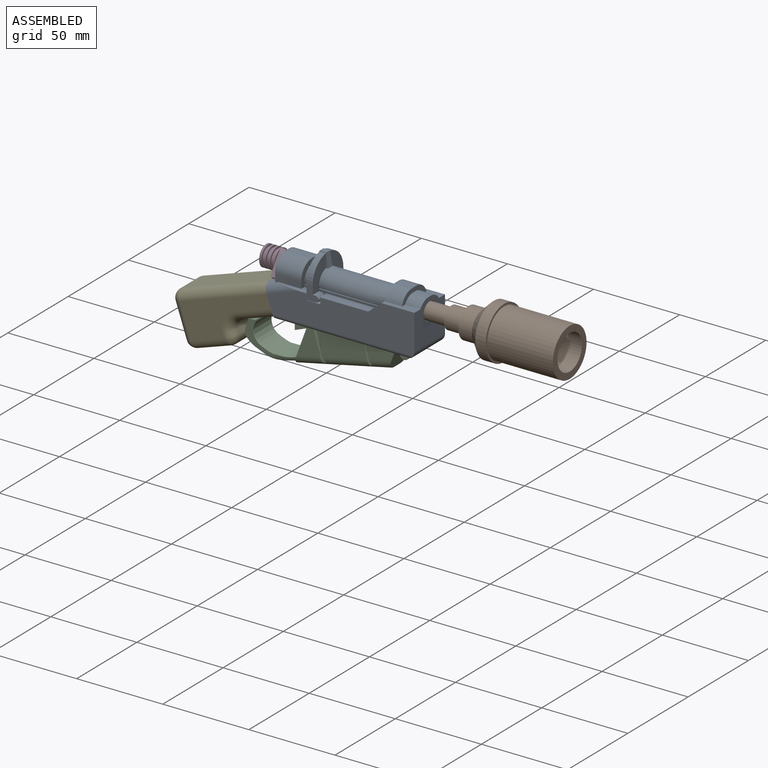
[diagram: assembled view]
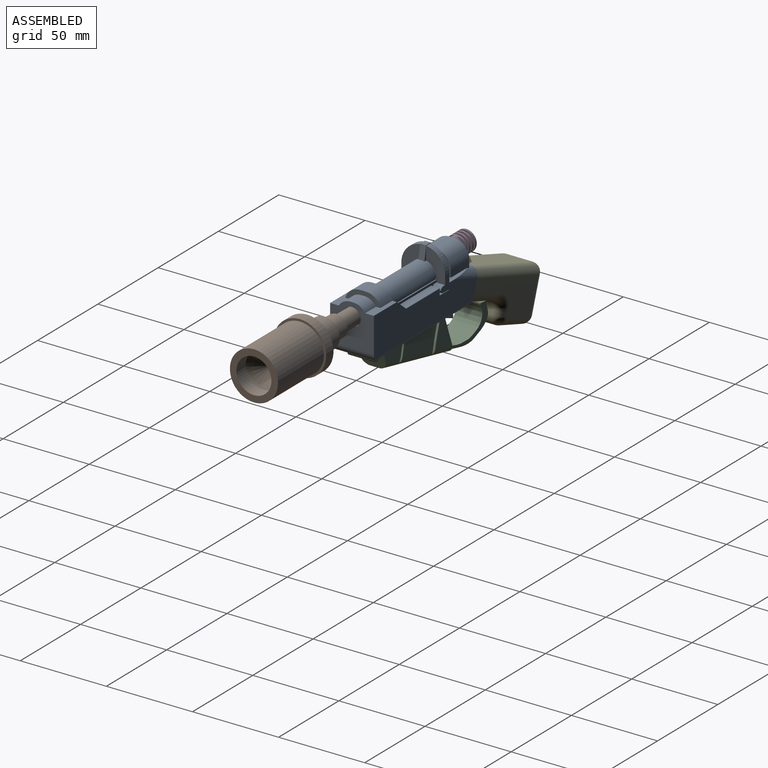
[diagram: assembled view, second angle]
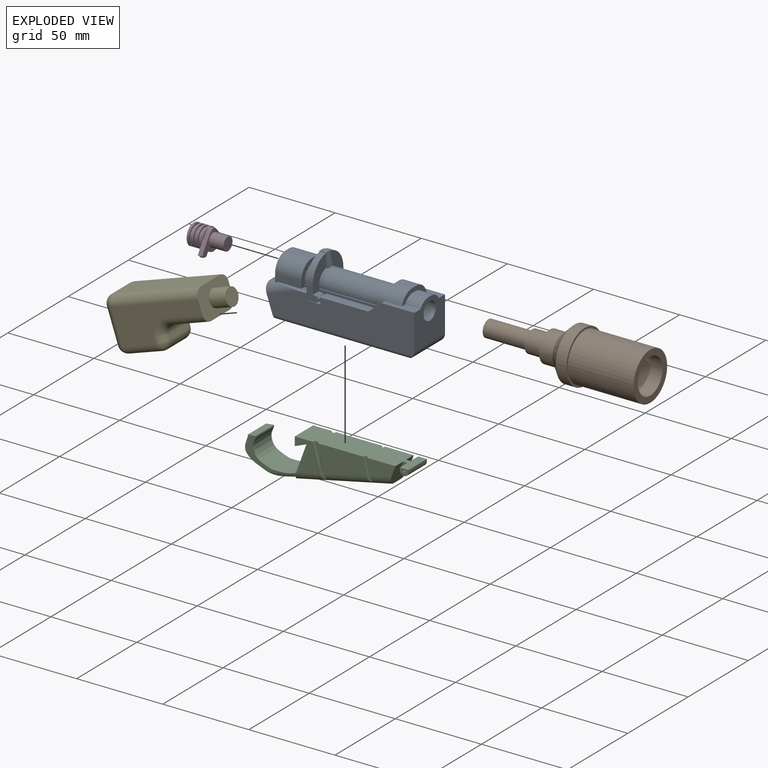
[diagram: exploded view]
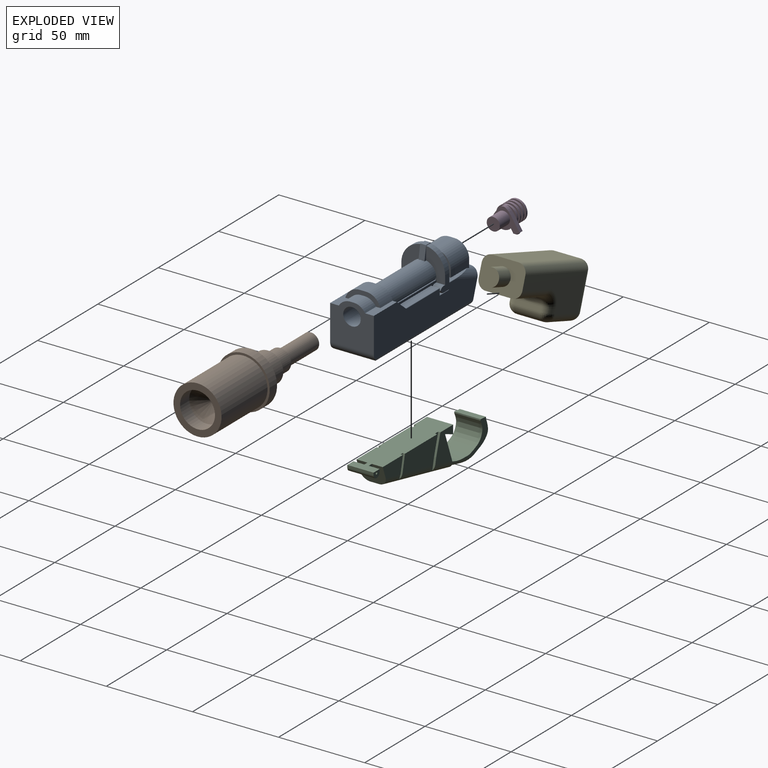
[diagram: exploded view, second angle]
ASSEMBLY  parts=5 mates=4
PART A: 98 faces, bbox 88.7x26.6x38.3 mm
  f0: plane 71.41x20.39mm, normal (0,0,-1), area 1456.1mm2, adj f74,f91,f94,f95
  f1: plane 25.41x20.33mm, normal (1,0,0), area 441.3mm2, adj f18,f21,f24,f29,f30,f74,f75
  f2: plane 37.14x5.08mm, normal (0,1,0), area 48.1mm2, adj f12,f16,f17,f23,f26,f27,f49,f52
  f3: plane 4.79x1.27mm, normal (0,-1,0), area 6.1mm2, adj f4,f8,f37,f65
  f4: plane 17.92x10.98mm, normal (-1,0,0), area 114.1mm2, adj f3,f5,f8,f11,f29,f59,f65,f66
  f5: cylinder r=12.7mm len=12.58mm, axis (1,0,0), area 65.5mm2, adj f4,f7,f29,f59
  f6: cylinder r=7.62mm len=39.87mm, axis (1,0,0), area 932.4mm2, adj f7,f22,f23,f36,f54,f57,f59,f60
  f7: plane 17.66x10.98mm, normal (1,0,0), area 114.1mm2, adj f5,f6,f14,f20,f29,f59,f62,f63
  f8: plane 19.16x6.07mm, normal (0,0,1), area 45.7mm2, adj f3,f4,f37,f40,f84,f89
  f9: plane 19.16x6.07mm, normal (0,0,1), area 45.7mm2, adj f10,f37,f38,f55,f83,f90
  f10: plane 4.79x1.27mm, normal (0,1,0), area 6.1mm2, adj f9,f37,f55,f71
  f11: cylinder r=7.62mm len=15.24mm, axis (1,0,0), area 109.1mm2, adj f4,f37,f55,f57,f59,f61,f66,f72
  f12: plane 5.08x0.38mm, normal (1,0,0), area 0.7mm2, adj f2,f16,f24,f49,f79
  f13: plane 5.08x0.38mm, normal (1,0,0), area 0.7mm2, adj f14,f15,f29,f48,f81
  f14: plane 37.14x5.08mm, normal (0,-1,0), area 48.1mm2, adj f7,f13,f15,f20,f22,f25,f28,f48
  f15: plane 7.62x5.08mm, normal (0,0,1), area 38.7mm2, adj f13,f14,f28,f29
  f16: plane 7.62x5.08mm, normal (0,0,1), area 38.7mm2, adj f2,f12,f17,f24
  f17: plane 5.08x3.81mm, normal (-1,0,0), area 19.3mm2, adj f2,f16,f24,f27,f85
  f18: plane 19.05x5.08mm, normal (0,0,1), area 71.3mm2, adj f1,f23,f24,f34,f44,f46
  f19: plane 10.16x3.62mm, normal (0,0,1), area 36.8mm2, adj f34,f36,f44,f45
  f20: plane 5.08x1.2mm, normal (0,0,1), area 6.1mm2, adj f7,f14,f29,f50
  f21: plane 19.05x5.08mm, normal (0,0,1), area 71.3mm2, adj f1,f22,f29,f34,f45,f47
  f22: plane 8.08x6.76mm, normal (-0.64,0,0.77), area 53.3mm2, adj f6,f14,f21,f25,f29,f33,f36,f62
  f23: plane 8.08x6.76mm, normal (-0.64,0,0.77), area 53.4mm2, adj f2,f6,f18,f24,f27,f32,f35,f36
  f24: plane 85.85x22.86mm, normal (0,1,0), area 1485.6mm2, adj f1,f12,f16,f17,f18,f23,f26,f52
  f25: plane 28x4.83mm, normal (0,0,1), area 135.1mm2, adj f14,f22,f28,f86
  f26: plane 5.08x1.2mm, normal (0,0,1), area 6.1mm2, adj f2,f24,f52,f54
  f27: plane 28x4.83mm, normal (0,0,1), area 135.1mm2, adj f2,f17,f23,f85
  f28: plane 5.08x3.81mm, normal (-1,0,0), area 19.3mm2, adj f14,f15,f25,f29,f86
  f29: plane 85.85x22.86mm, normal (0,-1,0), area 1485.6mm2, adj f1,f4,f5,f7,f13,f15,f20,f21
  f30: plane 15.25x3.82mm, normal (1,0,0), area 37.5mm2, adj f1,f31,f46,f47,f75
  f31: plane 9.01x2.04mm, normal (0,0,1), area 18.4mm2, adj f30,f34,f46,f47
  f32: plane 0.07x0.06mm, normal (0,1,0), area 0mm2, adj f23,f35,f44
  f33: plane 0.12x0.1mm, normal (0,-1,0), area 0mm2, adj f22,f36,f45
  f34: plane 20.32x6.35mm, normal (1,0,0), area 57.8mm2, adj f18,f19,f21,f31,f44,f45,f46,f47
  f35: plane 4.22x2.55mm, normal (-1,0.02,0), area 6.5mm2, adj f23,f32,f36,f44
  f36: plane 17.78x6.45mm, normal (-1,0,0), area 59.7mm2, adj f6,f19,f22,f23,f33,f35,f44,f45
  f37: plane 20.32x12.7mm, normal (1,0,0), area 97.8mm2, adj f3,f8,f9,f10,f11,f38,f40,f41
  f38: plane 15.24x4.75mm, normal (0,1,0), area 62.2mm2, adj f9,f37,f39,f42,f90
  f39: plane 20.43x13.53mm, normal (-1,0,0), area 181.4mm2, adj f38,f40,f41,f42,f43,f77,f87,f89
  f40: plane 15.24x4.75mm, normal (0,-1,0), area 62.2mm2, adj f8,f37,f39,f43,f89
  f41: plane 15.24x2.98mm, normal (0,0,1), area 45.4mm2, adj f37,f39,f42,f43
  f42: cylinder r=8.67mm len=15.24mm, axis (1,0,0), area 207.5mm2, adj f37,f38,f39,f41
  f43: cylinder r=8.67mm len=15.24mm, axis (-1,0,0), area 207.5mm2, adj f37,f39,f40,f41
  f44: cylinder r=8.67mm len=10.16mm, axis (1,0,0), area 114.4mm2, adj f18,f19,f32,f34,f35,f36
  f45: cylinder r=8.67mm len=10.16mm, axis (1,0,0), area 114.5mm2, adj f19,f21,f33,f34,f36
  f46: cylinder r=7.62mm len=9.01mm, axis (-1,0,0), area 71.9mm2, adj f18,f30,f31,f34
  f47: cylinder r=7.62mm len=9.01mm, axis (-1,0,0), area 71.9mm2, adj f21,f30,f31,f34
  f48: plane 4.83x4.45mm, normal (0,0,-1), area 21.5mm2, adj f13,f14,f51,f81
  f49: plane 4.83x4.45mm, normal (0,0,-1), area 21.5mm2, adj f2,f12,f53,f79
  f50: cylinder r=2.54mm len=5.08mm, axis (0,1,0), area 16.6mm2, adj f14,f20,f29,f51,f82
  f51: cylinder r=2.54mm len=4.83mm, axis (0,-1,0), area 15.8mm2, adj f14,f48,f50,f82
  f52: cylinder r=2.54mm len=5.08mm, axis (0,1,0), area 16.6mm2, adj f2,f24,f26,f53,f80
  f53: cylinder r=2.54mm len=4.83mm, axis (0,-1,0), area 15.8mm2, adj f2,f49,f52,f80
  f54: plane 17.66x10.98mm, normal (1,0,0), area 114.1mm2, adj f2,f6,f24,f26,f56,f57,f68,f69
  f55: plane 17.92x10.98mm, normal (-1,0,0), area 114.1mm2, adj f9,f10,f11,f24,f56,f57,f71,f72
  f56: cylinder r=12.7mm len=12.58mm, axis (1,0,0), area 65.5mm2, adj f24,f54,f55,f57
  f57: plane 8.01x6.64mm, normal (0,1,0), area 14.2mm2, adj f6,f11,f54,f55,f56,f58,f60,f61
  f58: plane 3.81x3.44mm, normal (0,0,1), area 13.1mm2, adj f57,f59,f60,f61
  f59: plane 8.01x6.64mm, normal (0,-1,0), area 14.2mm2, adj f4,f5,f6,f7,f11,f58,f60,f61
  f60: plane 8.08x3.51mm, normal (0.98,0,0.17), area 27.5mm2, adj f6,f57,f58,f59
  f61: plane 8.08x3.51mm, normal (-0.98,0,0.17), area 27.5mm2, adj f11,f57,f58,f59
  f62: plane 33.9x0.76mm, normal (0,0,1), area 25.8mm2, adj f7,f14,f22,f64
  f63: plane 35.42x0.76mm, normal (0,0,-1), area 27mm2, adj f6,f7,f22,f64
  f64: plane 35.42x1.27mm, normal (0,-1,0), area 44mm2, adj f7,f22,f62,f63
  f65: plane 4.79x0.76mm, normal (0,0,1), area 3.7mm2, adj f3,f4,f37,f67
  f66: plane 4.79x0.76mm, normal (0,0,-1), area 3.7mm2, adj f4,f11,f37,f67
  f67: plane 4.79x1.27mm, normal (0,-1,0), area 6.1mm2, adj f4,f37,f65,f66
  f68: plane 33.9x0.76mm, normal (0,0,1), area 25.8mm2, adj f2,f23,f54,f70
  f69: plane 35.42x0.76mm, normal (0,0,-1), area 27mm2, adj f6,f23,f54,f70
  f70: plane 35.42x1.27mm, normal (0,1,0), area 44mm2, adj f23,f54,f68,f69
  f71: plane 4.79x0.76mm, normal (0,0,1), area 3.7mm2, adj f10,f37,f55,f73
  f72: plane 4.79x0.76mm, normal (0,0,-1), area 3.7mm2, adj f11,f37,f55,f73
  f73: plane 4.79x1.27mm, normal (0,1,0), area 6.1mm2, adj f37,f55,f71,f72
  f74: cylinder r=5.08mm len=25.4mm, axis (0,-1,0), area 189.4mm2, adj f0,f1,f24,f29,f94,f95
  f75: cylinder r=5.08mm len=12.7mm, axis (1,0,0), area 405.4mm2, adj f1,f30,f76
  f76: plane 10.16x10.16mm, normal (1,0,0), area 81.1mm2, adj f75
  f77: cylinder r=3.81mm len=7.62mm, axis (-1,0,0), area 182.4mm2, adj f39,f78
  f78: plane 7.62x7.62mm, normal (-1,0,0), area 45.6mm2, adj f77
  f79: cylinder r=0.25mm len=4.45mm, axis (1,0,0), area 1.8mm2, adj f12,f24,f49,f80
  f80: torus R=2.29mm, axis (0,-1,0), area 1.3mm2, adj f24,f52,f53,f79
  f81: cylinder r=0.25mm len=4.45mm, axis (-1,0,0), area 1.8mm2, adj f13,f29,f48,f82
  f82: torus R=2.29mm, axis (0,-1,0), area 1.3mm2, adj f29,f50,f51,f81
  f83: cylinder r=0.25mm len=9.17mm, axis (-1,0,0), area 2.8mm2, adj f9,f24,f55,f90
  f84: cylinder r=0.25mm len=9.17mm, axis (1,0,0), area 2.8mm2, adj f4,f8,f29,f89
  f85: cylinder r=0.25mm len=28mm, axis (-1,0,0), area 11.1mm2, adj f17,f23,f24,f27
  f86: cylinder r=0.25mm len=28mm, axis (1,0,0), area 11.1mm2, adj f22,f25,f28,f29
  f87: plane 15.24x4.81mm, normal (-0.32,0,0.95), area 77.4mm2, adj f39,f88,f89,f90
  f88: plane 25.4x17.42mm, normal (-0.95,0,-0.32), area 372.1mm2, adj f24,f29,f87,f89,f90,f92,f94,f95
  f89: cylinder r=5.08mm len=19.86mm, axis (-0.95,0,-0.32), area 82.7mm2, adj f8,f29,f39,f40,f84,f87,f88
  f90: cylinder r=5.08mm len=19.86mm, axis (0.95,0,0.32), area 82.7mm2, adj f9,f24,f38,f39,f83,f87,f88
  f91: plane 20.39x0mm, normal (1,0,0), area 0mm2, adj f0,f93,f94,f95
  f92: plane 20.39x0mm, normal (-1,0,0), area 0mm2, adj f88,f93,f94,f95
  f93: plane 20.32x5.08mm, normal (0,0,-1), area 103.2mm2, adj f91,f92,f94,f95
  f94: cylinder r=2.54mm len=81.75mm, axis (-1,0,0), area 313.8mm2, adj f0,f29,f74,f88,f91,f92,f93
  f95: cylinder r=2.54mm len=81.75mm, axis (1,0,0), area 313.8mm2, adj f0,f24,f74,f88,f91,f92,f93
  f96: cylinder r=5.08mm len=12.89mm, axis (-0.95,0,-0.32), area 324.3mm2, adj f88,f97
  f97: plane 10.16x9.62mm, normal (-0.95,0,-0.32), area 81.1mm2, adj f96
PART B: 13 faces, bbox 30.5x30.5x94 mm
  f0: cylinder r=13.97mm len=38.1mm, axis (0,0,-1), area 3344.3mm2, adj f1,f3
  f1: plane 27.94x27.94mm, normal (0,0,-1), area 288.8mm2, adj f0,f12
  f2: cylinder r=15.24mm len=30.48mm, axis (0,0,-1), area 583.7mm2, adj f3,f10
  f3: plane 30.48x30.48mm, normal (0,0,-1), area 116.5mm2, adj f0,f2
  f4: cylinder r=8.89mm len=17.78mm, axis (0,0,-1), area 439.8mm2, adj f5,f10
  f5: plane 17.78x17.78mm, normal (0,0,1), area 121.6mm2, adj f4,f6
  f6: cylinder r=6.35mm len=12.7mm, axis (0,0,-1), area 405.4mm2, adj f5,f7
  f7: plane 12.7x12.7mm, normal (0,0,1), area 53.5mm2, adj f6,f8
  f8: cylinder r=4.83mm len=25.4mm, axis (0,0,-1), area 770.2mm2, adj f7,f9
  f9: plane 9.65x9.65mm, normal (0,0,1), area 73.2mm2, adj f8
  f10: cone r=8.64mm half-angle=45deg, axis (0,0,-1), area 680.8mm2, adj f2,f4
  f11: cone r=0mm half-angle=59deg, axis (0,0,-1), area 378.3mm2, adj f12
  f12: cylinder r=10.16mm len=20.32mm, axis (0,0,-1), area 486.4mm2, adj f1,f11
PART C: 49 faces, bbox 95.6x15.9x27.8 mm
  f0: plane 18.23x14.79mm, normal (0,-1,0), area 166.3mm2, adj f3,f14,f15,f16,f26,f27,f47
  f1: plane 17.97x16.47mm, normal (0,1,0), area 81.3mm2, adj f42,f43,f44,f45,f46,f48
  f2: plane 13.89x2.92mm, normal (-0.94,0,-0.34), area 26.5mm2, adj f4,f43,f47,f48
  f3: plane 66.04x15.24mm, normal (0,0,-1), area 963mm2, adj f0,f5,f6,f7,f8,f10,f11,f12
  f4: plane 55.14x11.93mm, normal (0.21,0,0.98), area 286.6mm2, adj f2,f17,f47,f48
  f5: plane 28.67x14.76mm, normal (0,1,0), area 317.6mm2, adj f3,f34,f38,f39,f48
  f6: plane 18.23x14.79mm, normal (0,1,0), area 166.3mm2, adj f3,f14,f15,f16,f37,f40,f48
  f7: plane 16.78x9.01mm, normal (0,1,0), area 111.9mm2, adj f3,f17,f35,f48
  f8: plane 28.67x14.76mm, normal (0,-1,0), area 317.6mm2, adj f3,f28,f29,f31,f47
  f9: plane 17.97x16.47mm, normal (0,-1,0), area 81.3mm2, adj f42,f43,f44,f45,f46,f47
  f10: plane 16.78x9.01mm, normal (0,-1,0), area 111.9mm2, adj f3,f17,f32,f47
  f11: plane 3.46x2.54mm, normal (0,1,0), area 7.6mm2, adj f3,f17,f19,f24,f25
  f12: plane 3.46x2.54mm, normal (0,-1,0), area 7.6mm2, adj f3,f13,f17,f24,f25
  f13: plane 6.35x1.27mm, normal (-1,0,0), area 8.1mm2, adj f3,f12,f18,f22
  f14: plane 16.77x15.24mm, normal (-0.94,0,-0.34), area 271.9mm2, adj f0,f6,f15,f42,f47,f48
  f15: plane 15.24x6.75mm, normal (0.37,0,0.93), area 110.8mm2, adj f0,f6,f14,f16
  f16: plane 15.24x5.08mm, normal (-1,0,0), area 77.4mm2, adj f0,f3,f6,f15
  f17: plane 15.24x11.93mm, normal (0.94,0,0.34), area 173.6mm2, adj f3,f4,f7,f10,f11,f12,f25,f47
  f18: cylinder r=2.54mm len=15.24mm, axis (0,1,0), area 121.6mm2, adj f13,f19,f20,f22,f23,f24
  f19: plane 6.35x1.27mm, normal (-1,0,0), area 8.1mm2, adj f3,f11,f18,f23
  f20: plane 15.24x1.27mm, normal (1,0,0), area 19.4mm2, adj f3,f18,f22,f23
  f21: cylinder r=0.64mm len=15.24mm, axis (0,1,0), area 60.8mm2, adj f22,f23
  f22: plane 5.08x3.81mm, normal (0,-1,0), area 15.3mm2, adj f3,f13,f18,f20,f21
  f23: plane 5.08x3.81mm, normal (0,1,0), area 15.3mm2, adj f3,f18,f19,f20,f21
  f24: plane 2.54x1.27mm, normal (1,0,0), area 3.2mm2, adj f11,f12,f18,f25
  f25: plane 3.46x2.54mm, normal (0,0,1), area 8.8mm2, adj f11,f12,f17,f24
  f26: plane 6.59x1.43mm, normal (0.98,0,-0.21), area 7.2mm2, adj f0,f27,f30,f47
  f27: plane 11.93x3.47mm, normal (0.96,0,-0.28), area 15.8mm2, adj f0,f3,f26,f30
  f28: plane 10.36x2.76mm, normal (-0.97,0,0.26), area 13.6mm2, adj f3,f8,f29,f30
  f29: plane 7.68x1.66mm, normal (-0.98,0,0.21), area 8.6mm2, adj f8,f28,f30,f47
  f30: plane 18.52x7.13mm, normal (0,-1,0), area 45.3mm2, adj f3,f26,f27,f28,f29,f47
  f31: plane 12.64x2.74mm, normal (0.98,0,-0.21), area 15.1mm2, adj f3,f8,f33,f47
  f32: plane 12.29x2.66mm, normal (-0.98,0,0.21), area 14.6mm2, adj f3,f10,f33,f47
  f33: plane 12.64x4.36mm, normal (0,-1,0), area 21.2mm2, adj f3,f31,f32,f47
  f34: plane 12.64x2.74mm, normal (0.98,0,-0.21), area 15.1mm2, adj f3,f5,f36,f48
  f35: plane 12.29x2.66mm, normal (-0.98,0,0.21), area 14.6mm2, adj f3,f7,f36,f48
  f36: plane 12.64x4.36mm, normal (0,1,0), area 21.2mm2, adj f3,f34,f35,f48
  f37: plane 6.59x1.43mm, normal (0.98,0,-0.21), area 7.2mm2, adj f6,f40,f41,f48
  f38: plane 7.68x1.66mm, normal (-0.98,0,0.21), area 8.6mm2, adj f5,f39,f41,f48
  f39: plane 10.36x2.76mm, normal (-0.97,0,0.26), area 13.6mm2, adj f3,f5,f38,f41
  f40: plane 11.93x3.47mm, normal (0.96,0,-0.28), area 15.8mm2, adj f3,f6,f37,f41
  f41: plane 18.52x7.13mm, normal (0,1,0), area 45.3mm2, adj f3,f37,f38,f39,f40,f48
  f42: extruded ~24.84x15.24mm, area 530.7mm2, adj f1,f9,f14,f44,f47,f48
  f43: extruded ~28.63x16.59mm, area 573.8mm2, adj f1,f2,f9,f45,f47,f48
  f44: plane 15.24x0.76mm, normal (0.99,0,-0.1), area 11.6mm2, adj f1,f9,f42,f46
  f45: plane 15.24x0.76mm, normal (-0.99,0,0.1), area 11.6mm2, adj f1,f9,f43,f46
  f46: plane 15.24x4.57mm, normal (-0.1,0,-0.99), area 70.1mm2, adj f1,f9,f44,f45
  f47: cylinder r=5.08mm len=74.56mm, axis (0.98,0,-0.21), area 473.8mm2, adj f0,f2,f4,f8,f9,f10,f14,f17
  f48: cylinder r=5.08mm len=74.56mm, axis (-0.98,0,0.21), area 473.8mm2, adj f1,f2,f4,f5,f6,f7,f14,f17
PART D: 34 faces, bbox 13.2x19.4x19.8 mm
  f0: plane 19.44x12.94mm, normal (0,0,1), area 91.4mm2, adj f2,f19,f20,f21,f22,f23,f24,f25
  f1: plane 18.82x6.82mm, normal (0,0,-1), area 35.1mm2, adj f2,f18,f19,f20,f21,f22,f23,f24
  f2: extruded ~18.81x11.31mm, area 76.5mm2, adj f0,f1,f3,f4,f22,f23
  f3: plane 6.66x6.66mm, normal (0,0,1), area 5.7mm2, adj f2,f18
  f4: plane 6.66x6.66mm, normal (0,0,1), area 5.7mm2, adj f2,f18
  f5: plane 12.07x12.07mm, normal (0,0,-1), area 114.3mm2, adj f6
  f6: cylinder r=6.03mm len=12.07mm, axis (0,0,-1), area 48.1mm2, adj f5,f7
  f7: plane 12.07x12.07mm, normal (0,0,1), area 33.3mm2, adj f6,f8
  f8: cylinder r=5.08mm len=10.16mm, axis (0,0,-1), area 40.5mm2, adj f7,f9
  f9: plane 12.07x12.07mm, normal (0,0,-1), area 33.3mm2, adj f8,f10
  f10: cylinder r=6.03mm len=12.07mm, axis (0,0,-1), area 48.1mm2, adj f9,f11
  f11: plane 12.07x12.07mm, normal (0,0,1), area 33.3mm2, adj f10,f12
  f12: cylinder r=5.08mm len=10.16mm, axis (0,0,-1), area 40.5mm2, adj f11,f13
  f13: plane 12.07x12.07mm, normal (0,0,-1), area 33.3mm2, adj f12,f14
  f14: cylinder r=6.03mm len=12.07mm, axis (0,0,-1), area 48.1mm2, adj f13,f15
  f15: plane 12.07x12.07mm, normal (0,0,1), area 33.3mm2, adj f14,f16
  f16: cylinder r=5.08mm len=10.16mm, axis (0,0,-1), area 40.5mm2, adj f15,f17
  f17: plane 12.07x12.07mm, normal (0,0,-1), area 33.3mm2, adj f16,f18
  f18: cylinder r=6.03mm len=12.07mm, axis (0,0,-1), area 48.1mm2, adj f1,f3,f4,f17
  f19: cylinder r=6.1mm len=8.62mm, axis (0,0,1), area 24.3mm2, adj f0,f1,f20,f21
  f20: plane 2.54x2mm, normal (0.57,0.82,0), area 6.2mm2, adj f0,f1,f19,f27
  f21: plane 2.54x2mm, normal (0.57,-0.82,0), area 6.2mm2, adj f0,f1,f19,f25
  f22: plane 2.54x1.5mm, normal (0.82,-0.57,0), area 4.6mm2, adj f0,f1,f2,f28
  f23: plane 2.54x1.5mm, normal (0.82,0.57,0), area 4.6mm2, adj f0,f1,f2,f24
  f24: plane 2.54x0.51mm, normal (0,1,0), area 1.1mm2, adj f0,f1,f23,f26,f31
  f25: plane 2.54x0.51mm, normal (0,-1,0), area 1.1mm2, adj f0,f1,f21,f26,f31
  f26: plane 2.22x1.27mm, normal (1,0,0), area 2.8mm2, adj f1,f24,f25,f31
  f27: plane 2.54x0.51mm, normal (0,1,0), area 1.1mm2, adj f0,f1,f20,f29,f30
  f28: plane 2.54x0.51mm, normal (0,-1,0), area 1.1mm2, adj f0,f1,f22,f29,f30
  f29: plane 2.22x1.27mm, normal (1,0,0), area 2.8mm2, adj f1,f27,f28,f30
  f30: plane 2.22x1.27mm, normal (0.98,0,0.17), area 2.9mm2, adj f0,f27,f28,f29
  f31: plane 2.22x1.27mm, normal (0.98,0,0.17), area 2.9mm2, adj f0,f24,f25,f26
  f32: cylinder r=3.81mm len=8.38mm, axis (0,0,-1), area 200.7mm2, adj f0,f33
  f33: plane 7.62x7.62mm, normal (0,0,1), area 45.6mm2, adj f32
PART E: 32 faces, bbox 68.5x25.4x30.5 mm
  f0: plane 53.28x15.24mm, normal (0,0,-1), area 811.9mm2, adj f5,f8,f20,f21
  f1: plane 20.32x15.24mm, normal (1,0,0), area 309.7mm2, adj f8,f9,f18,f23
  f2: plane 20.32x15.24mm, normal (0,0,1), area 309.7mm2, adj f9,f10,f16,f25
  f3: plane 15.24x2.54mm, normal (-1,0,0), area 38.7mm2, adj f10,f11,f14,f27
  f4: plane 22.8x15.24mm, normal (0,0,1), area 347.4mm2, adj f5,f11,f12,f29
  f5: plane 25.4x17.78mm, normal (-1,0,0), area 352.4mm2, adj f0,f4,f6,f7,f12,f20,f21,f29
  f6: plane 53.28x20.32mm, normal (0,-1,0), area 686.2mm2, adj f5,f12,f13,f14,f16,f18,f20
  f7: plane 53.28x20.32mm, normal (0,1,0), area 686.2mm2, adj f5,f21,f23,f25,f27,f28,f29
  f8: cylinder r=5.08mm len=15.24mm, axis (0,-1,0), area 121.6mm2, adj f0,f1,f19,f22
  f9: cylinder r=5.08mm len=15.24mm, axis (0,1,0), area 121.6mm2, adj f1,f2,f17,f24
  f10: cylinder r=5.08mm len=15.24mm, axis (0,-1,0), area 121.6mm2, adj f2,f3,f15,f26
  f11: cylinder r=5.08mm len=15.24mm, axis (0,1,0), area 121.6mm2, adj f3,f4,f13,f28
  f12: cylinder r=5.08mm len=22.8mm, axis (1,0,0), area 181.9mm2, adj f4,f5,f6,f13
  f13: torus R=10.16mm, axis (0,-1,0), area 86.8mm2, adj f6,f11,f12,f14
  f14: cylinder r=5.08mm len=5.08mm, axis (0,0,1), area 20.3mm2, adj f3,f6,f13,f15
  f15: sphere r=5.08mm, area 40.5mm2, adj f10,f14,f16
  f16: cylinder r=5.08mm len=20.32mm, axis (1,0,0), area 162.1mm2, adj f2,f6,f15,f17
  f17: sphere r=5.08mm, area 40.5mm2, adj f9,f16,f18
  f18: cylinder r=5.08mm len=20.32mm, axis (0,0,-1), area 162.1mm2, adj f1,f6,f17,f19
  f19: sphere r=5.08mm, area 40.5mm2, adj f8,f18,f20
  f20: cylinder r=5.08mm len=53.28mm, axis (-1,0,0), area 425.1mm2, adj f0,f5,f6,f19
  f21: cylinder r=5.08mm len=53.28mm, axis (1,0,0), area 425.1mm2, adj f0,f5,f7,f22
  f22: sphere r=5.08mm, area 40.5mm2, adj f8,f21,f23
  f23: cylinder r=5.08mm len=20.32mm, axis (0,0,1), area 162.1mm2, adj f1,f7,f22,f24
  f24: sphere r=5.08mm, area 40.5mm2, adj f9,f23,f25
  f25: cylinder r=5.08mm len=20.32mm, axis (-1,0,0), area 162.1mm2, adj f2,f7,f24,f26
  f26: sphere r=5.08mm, area 40.5mm2, adj f10,f25,f27
  f27: cylinder r=5.08mm len=5.08mm, axis (0,0,-1), area 20.3mm2, adj f3,f7,f26,f28
  f28: torus R=10.16mm, axis (0,-1,0), area 86.8mm2, adj f7,f11,f27,f29
  f29: cylinder r=5.08mm len=22.8mm, axis (-1,0,0), area 181.9mm2, adj f4,f5,f7,f28
  f30: cylinder r=4.95mm len=10.16mm, axis (1,0,0), area 316.2mm2, adj f5,f31
  f31: plane 9.91x9.91mm, normal (-1,0,0), area 77.1mm2, adj f30
PLACE A t=(-2.76,5.03,-9.73)mm
PLACE B rot(axis=(0,-1,0),90deg) t=(116.62,-7.67,11.86)mm
PLACE C rot(axis=(-1,0,0),180deg) t=(-4.67,-15.29,-7.19)mm
PLACE D rot(axis=(0,1,0),90deg) t=(-59.53,-7.67,15.67)mm
PLACE E rot(axis=(0,1,0),161.2deg) t=(-80.89,5.03,5.65)mm
MATE fastened B.f2 <-> A.f75  axis (-1,0,0) through (22.64,-7.67,11.86)mm
MATE fastened C.f3 <-> A.f0  axis (0,0,1) through (-5.45,-7.67,-9.73)mm
MATE fastened E.f30 <-> A.f96  axis (0.95,0,0.32) through (-39.57,-7.67,2.25)mm
MATE fastened A.f77 <-> D.f19  axis (-1,0,0) through (-39.71,-7.67,15.67)mm
